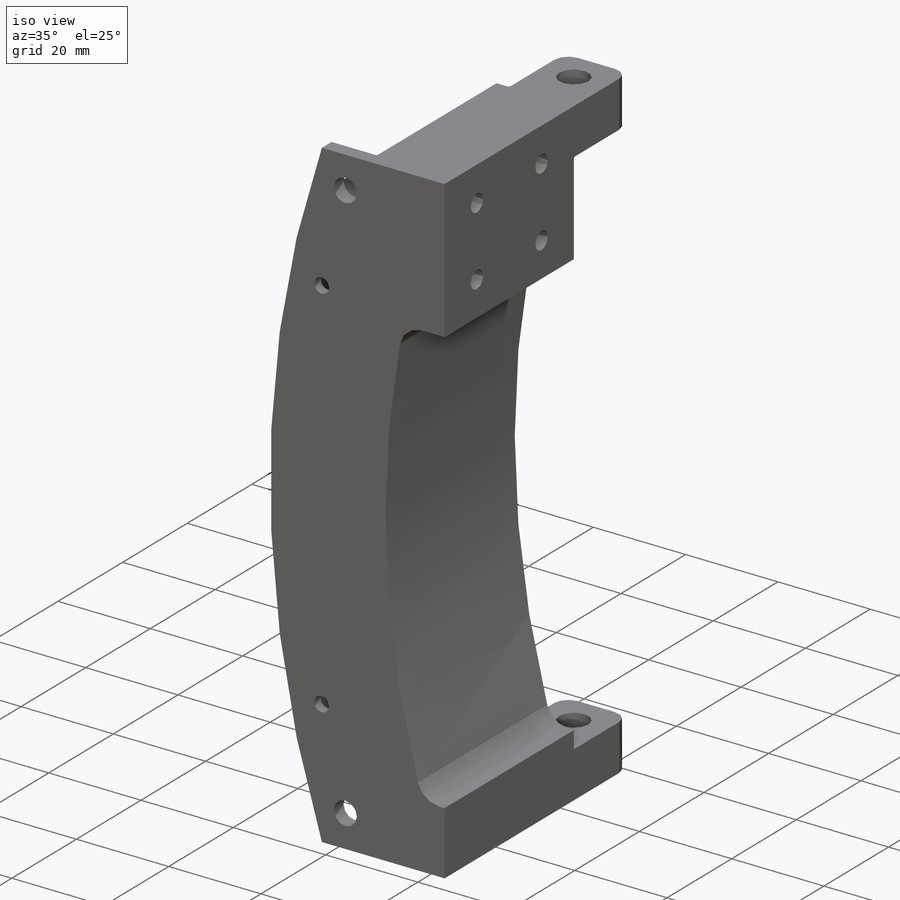
[diagram: iso view]
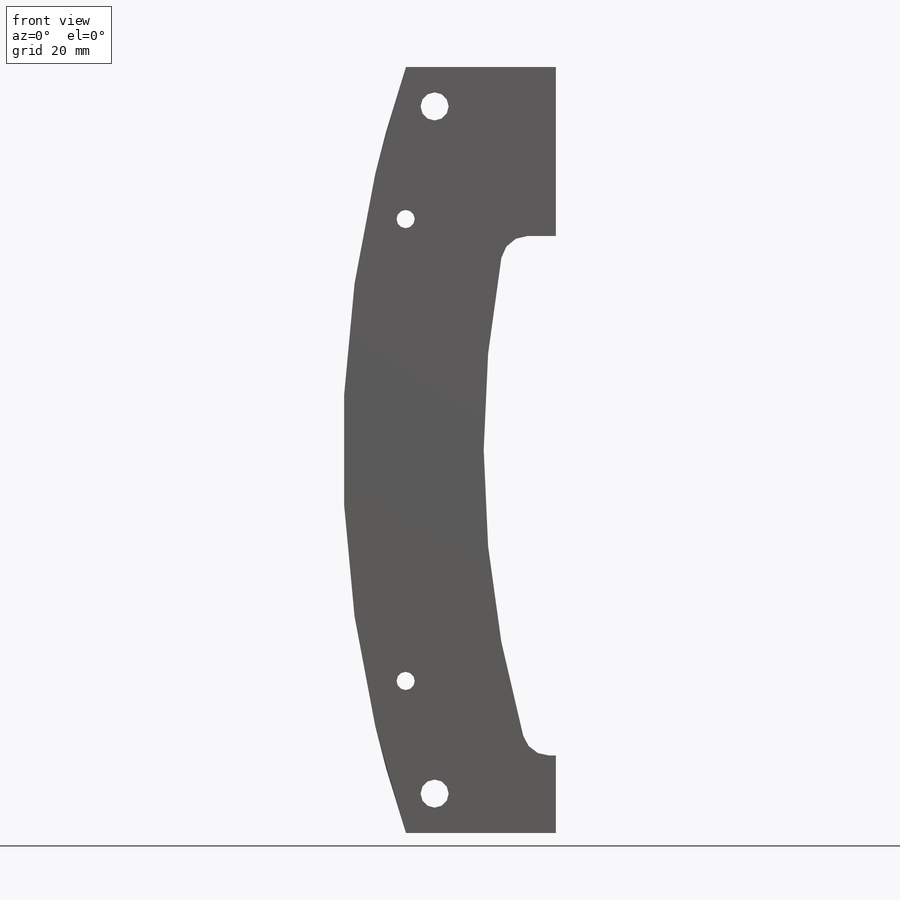
[diagram: front view]
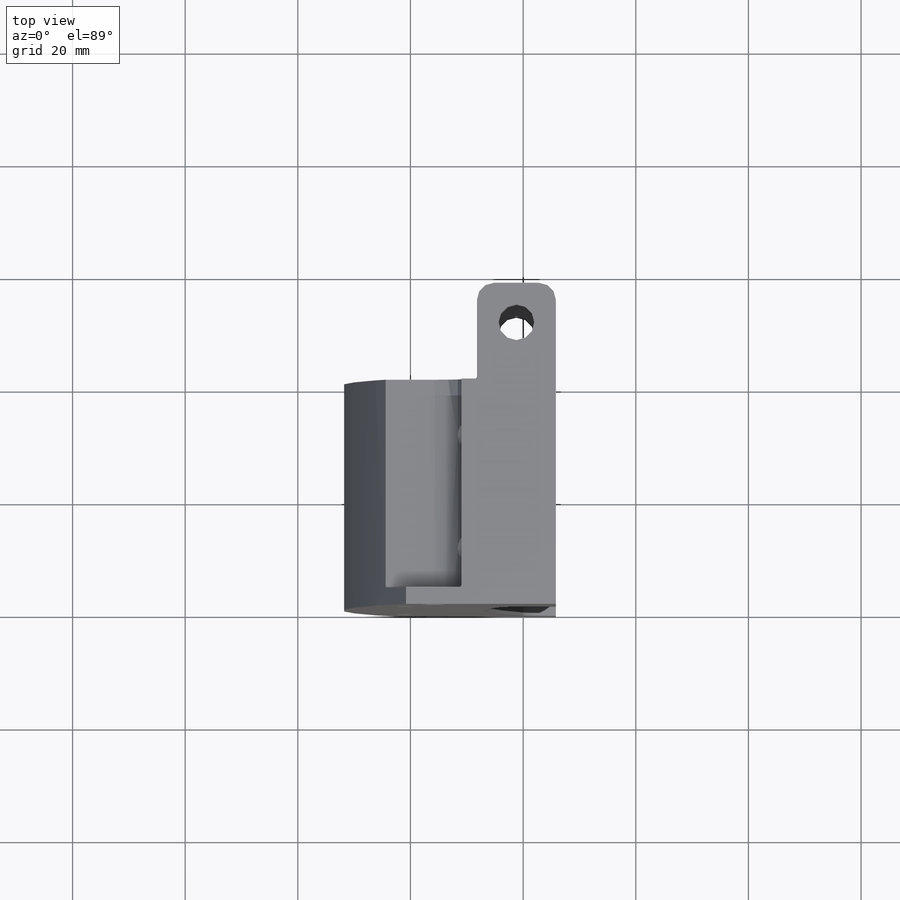
[diagram: top view]
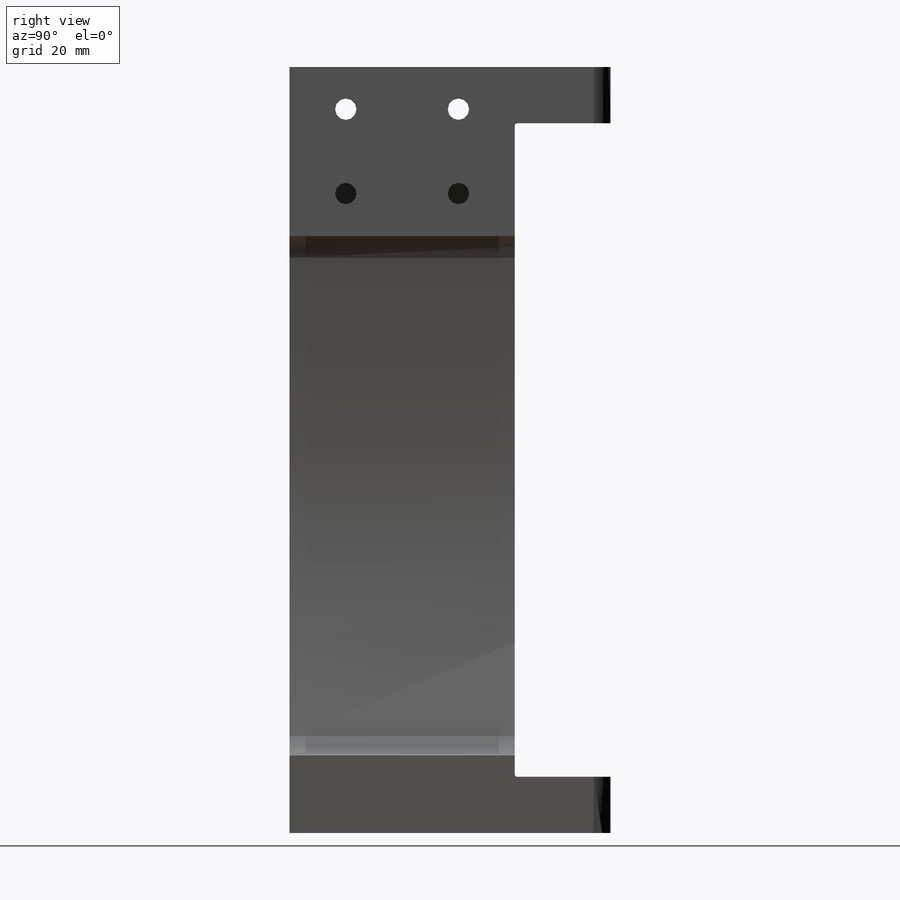
[diagram: right view]
SOLIDWORKS PART (.sldprt)
format: sldprt  version: not decoded by parser v0  size: 512,512 bytes
history: native  units: mm
features: sketch x13, extrude x5, thread x4, cut_extrude x3, mirror x3, fillet x3, hole x2, material x1, shell x1 (+11 scaffold rows collapsed)
feature tree (46):
  scaffold x11  (default folders/planes/origin — collapsed)
  material  "6061-T6 (SS)"
  sketch  "Sketch1"  dims[c1.D1=424.0mm c1.D2=410.0mm c1.D3=374.0mm c1.D4=68.0mm c1.D5=68.0mm c1.D6=109.0mm c1.D7=50.0mm c1.D8=83.0mm c1.D9=61.0mm c1.D10=41.0mm c2.D6=30.0mm c2.D7=13.7625mm]
  extrude  "master sketch here"  Depth=40mm
  sketch  "Sketch4"  dims[D1=9.525mm]
  cut_extrude  "Cut-Extrude1"  Depth=3mm
  hole  "#10 Clearance Hole1"  Diameter=4.9784mm Depth=40mm
  sketch  "Sketch3"
  sketch  "Sketch2"  dims[hole-wizard template sketch: 60 standard entries collapsed; hole parameters kept: c18.Thru Hole Depth=40.0mm]
  mirror  "Mirror1"
  shell  "Shell1"  Thickness=2mm
  sketch  "Sketch5"  dims[D1=3.2258mm]
  cut_extrude  "Cut-Extrude2"  [1 undecoded]
  sketch  "Sketch6"  dims[D1=10.7696mm D2=9.525mm]
  extrude  "Boss-Extrude2"  [1 undecoded]
  sketch  "Sketch14"  dims[D1=14.0mm D2=10.0mm]
  extrude  "Boss-Extrude5"  Depth=17mm
  sketch  "Sketch15"  dims[D1=~6.34238mm D2=50.0mm]
  cut_extrude  "Cut-Extrude5"  [1 undecoded]
  mirror  "Mirror3"
  sketch  "Sketch12"
  extrude  "Boss-Extrude3"  [1 undecoded]
  mirror  "Mirror2"
  sketch  "Sketch13"
  extrude  "Boss-Extrude4"  [1 undecoded]
  sketch  "Sketch9"  dims[D1=25.0mm]
  hole  "#10-24 Tapped Hole1"  [1 undecoded]
  sketch  "Sketch11"
  thread  "Hole Thread1"  Diameter=4.826mm  [1 undecoded]
  thread  "Hole Thread2"  Diameter=4.826mm  [1 undecoded]
  thread  "Hole Thread3"  Diameter=4.826mm  [1 undecoded]
  thread  "Hole Thread4"  Diameter=4.826mm  [1 undecoded]
  sketch  "Sketch10"  dims[hole-wizard template sketch: 60 standard entries collapsed; hole parameters kept: c18.Thru Tap Drill Depth=~10.520542mm]
  fillet  "Fillet1"  Radius=4.7625mm
  fillet  "Fillet3"  Radius=3mm
  fillet  "Fillet4"  Radius=0.39624mm
decode coverage: 21 of 34 modeling features carry decoded parameters
note: ~ marks probable driven/reference dimensions
note: 10 parameter values undecoded
summary: no parameter record found for 6 features
note: suppression state not decoded; provenance and decode notes live in map.json
